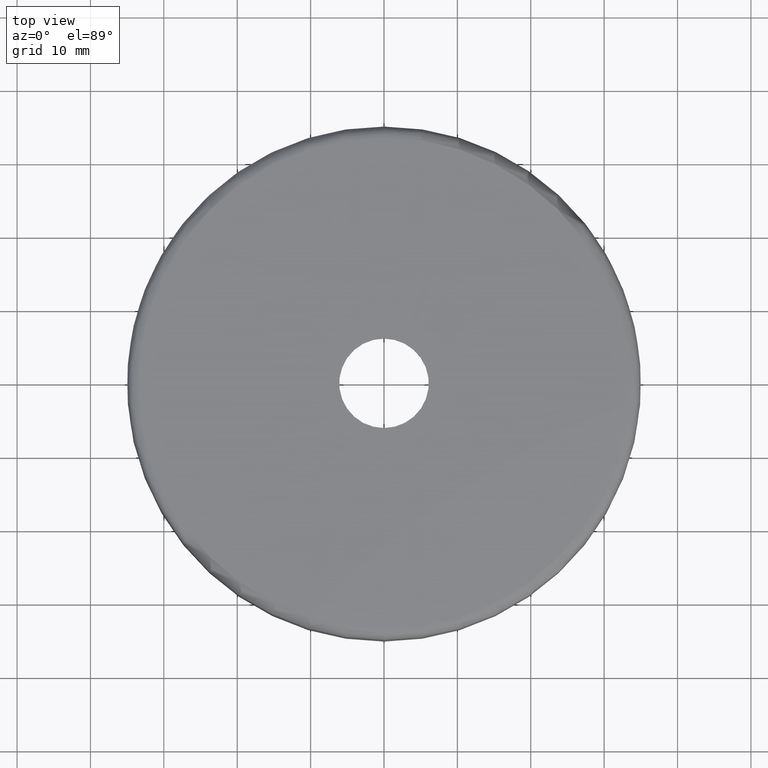
[diagram: clean part render]
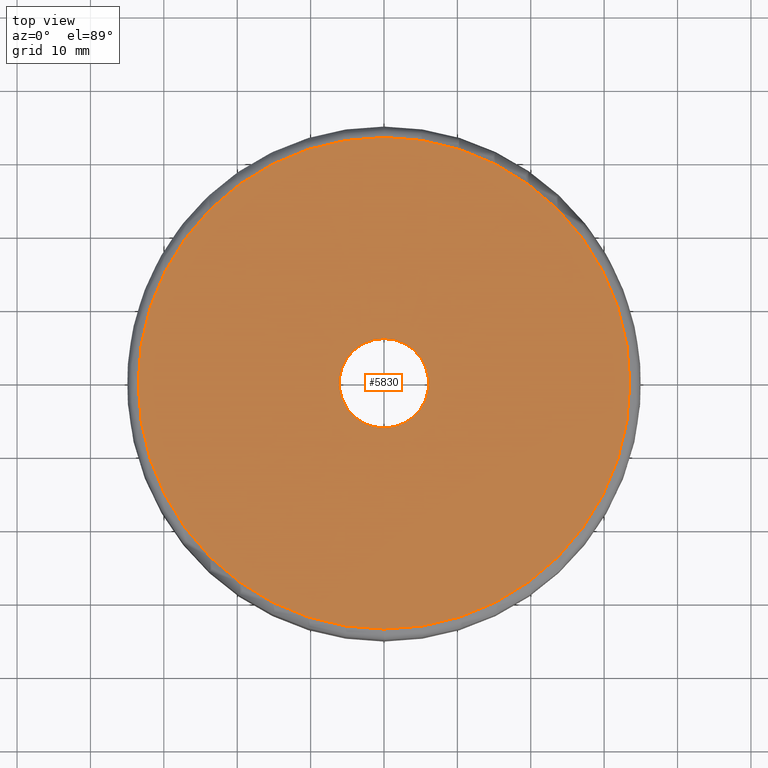
[diagram: same view with one face highlighted and labeled with its STEP entity id]
A machine part, top view. The second image highlights one B-rep face of the part: STEP entity #5830.
In plain terms, the highlighted planar face has unit normal (-0, 0, -1).
Its self-contained STEP definition (entity closure, byte-faithful):
#224 = EDGE_LOOP ( 'NONE', ( #5565, #4091 ) ) ;
#574 = AXIS2_PLACEMENT_3D ( 'NONE', #627, #8740, #6483 ) ;
#616 = DIRECTION ( 'NONE',  ( -0.000000000000000000, 1.224646799147353454E-16, -1.000000000000000000 ) ) ;
#627 = CARTESIAN_POINT ( 'NONE',  ( 0.000000000000000000, -1.469576158976824736E-15, 12.00000000000000533 ) ) ;
#954 = VERTEX_POINT ( 'NONE', #4346 ) ;
#965 = DIRECTION ( 'NONE',  ( 0.000000000000000000, 1.000000000000000000, 1.035655806553317700E-16 ) ) ;
#1613 = AXIS2_PLACEMENT_3D ( 'NONE', #12504, #3322, #965 ) ;
#1982 = DIRECTION ( 'NONE',  ( 0.000000000000000000, 1.000000000000000000, 0.000000000000000000 ) ) ;
#2134 = EDGE_CURVE ( 'NONE', #7595, #954, #5352, .T. ) ;
#2301 = FACE_BOUND ( 'NONE', #224, .T. ) ;
#2523 = AXIS2_PLACEMENT_3D ( 'NONE', #13396, #616, #1982 ) ;
#2856 = CARTESIAN_POINT ( 'NONE',  ( 0.000000000000000000, 33.50000000000000000, 12.00000000000000888 ) ) ;
#3322 = DIRECTION ( 'NONE',  ( -0.000000000000000000, 1.224646799147353454E-16, -1.000000000000000000 ) ) ;
#4091 = ORIENTED_EDGE ( 'NONE', *, *, #2134, .T. ) ;
#4346 = CARTESIAN_POINT ( 'NONE',  ( 0.000000000000000000, 6.099999999999997868, 12.00000000000000178 ) ) ;
#5143 = AXIS2_PLACEMENT_3D ( 'NONE', #12588, #14974, #7914 ) ;
#5352 = CIRCLE ( 'NONE', #10656, 6.099999999999999645 ) ;
#5565 = ORIENTED_EDGE ( 'NONE', *, *, #6288, .T. ) ;
#5759 = CARTESIAN_POINT ( 'NONE',  ( 4.194415287079684346E-15, -33.50000000000000000, 12.00000000000000178 ) ) ;
#5830 = ADVANCED_FACE ( 'NONE', ( #9020, #2301 ), #12542, .F. ) ;
#6211 = VERTEX_POINT ( 'NONE', #2856 ) ;
#6288 = EDGE_CURVE ( 'NONE', #954, #7595, #13739, .T. ) ;
#6483 = DIRECTION ( 'NONE',  ( 0.000000000000000000, 1.000000000000000000, 1.035655806553317700E-16 ) ) ;
#6741 = ORIENTED_EDGE ( 'NONE', *, *, #7212, .F. ) ;
#6992 = CIRCLE ( 'NONE', #574, 33.50000000000000000 ) ;
#7212 = EDGE_CURVE ( 'NONE', #6211, #12969, #6992, .T. ) ;
#7595 = VERTEX_POINT ( 'NONE', #14276 ) ;
#7906 = CIRCLE ( 'NONE', #1613, 33.50000000000000000 ) ;
#7914 = DIRECTION ( 'NONE',  ( 0.000000000000000000, 1.000000000000000000, 1.224646799147353454E-16 ) ) ;
#7924 = DIRECTION ( 'NONE',  ( 0.000000000000000000, 1.000000000000000000, 0.000000000000000000 ) ) ;
#8393 = EDGE_CURVE ( 'NONE', #12969, #6211, #7906, .T. ) ;
#8740 = DIRECTION ( 'NONE',  ( -0.000000000000000000, 1.224646799147353454E-16, -1.000000000000000000 ) ) ;
#8799 = ORIENTED_EDGE ( 'NONE', *, *, #8393, .F. ) ;
#8956 = CARTESIAN_POINT ( 'NONE',  ( 0.000000000000000000, -1.469576158976824539E-15, 12.00000000000000178 ) ) ;
#9020 = FACE_OUTER_BOUND ( 'NONE', #13341, .T. ) ;
#10656 = AXIS2_PLACEMENT_3D ( 'NONE', #8956, #14886, #7924 ) ;
#12504 = CARTESIAN_POINT ( 'NONE',  ( 0.000000000000000000, -1.469576158976824736E-15, 12.00000000000000533 ) ) ;
#12542 = PLANE ( 'NONE',  #5143 ) ;
#12588 = CARTESIAN_POINT ( 'NONE',  ( 0.000000000000000000, -6.100000000000001421, 12.00000000000000355 ) ) ;
#12969 = VERTEX_POINT ( 'NONE', #5759 ) ;
#13341 = EDGE_LOOP ( 'NONE', ( #6741, #8799 ) ) ;
#13396 = CARTESIAN_POINT ( 'NONE',  ( 0.000000000000000000, -1.469576158976824539E-15, 12.00000000000000178 ) ) ;
#13739 = CIRCLE ( 'NONE', #2523, 6.099999999999999645 ) ;
#14276 = CARTESIAN_POINT ( 'NONE',  ( 7.470345474798854293E-16, -6.100000000000001421, 12.00000000000000178 ) ) ;
#14886 = DIRECTION ( 'NONE',  ( -0.000000000000000000, 1.224646799147353454E-16, -1.000000000000000000 ) ) ;
#14974 = DIRECTION ( 'NONE',  ( -0.000000000000000000, 1.224646799147353454E-16, -1.000000000000000000 ) ) ;